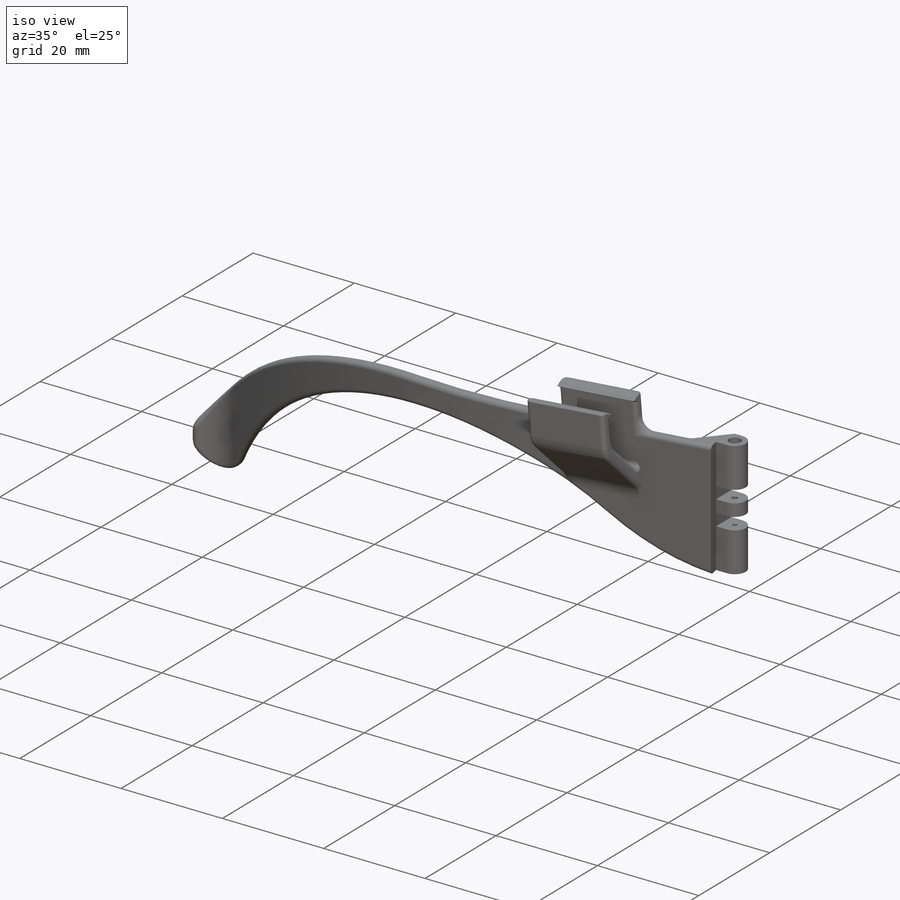
[diagram: iso view]
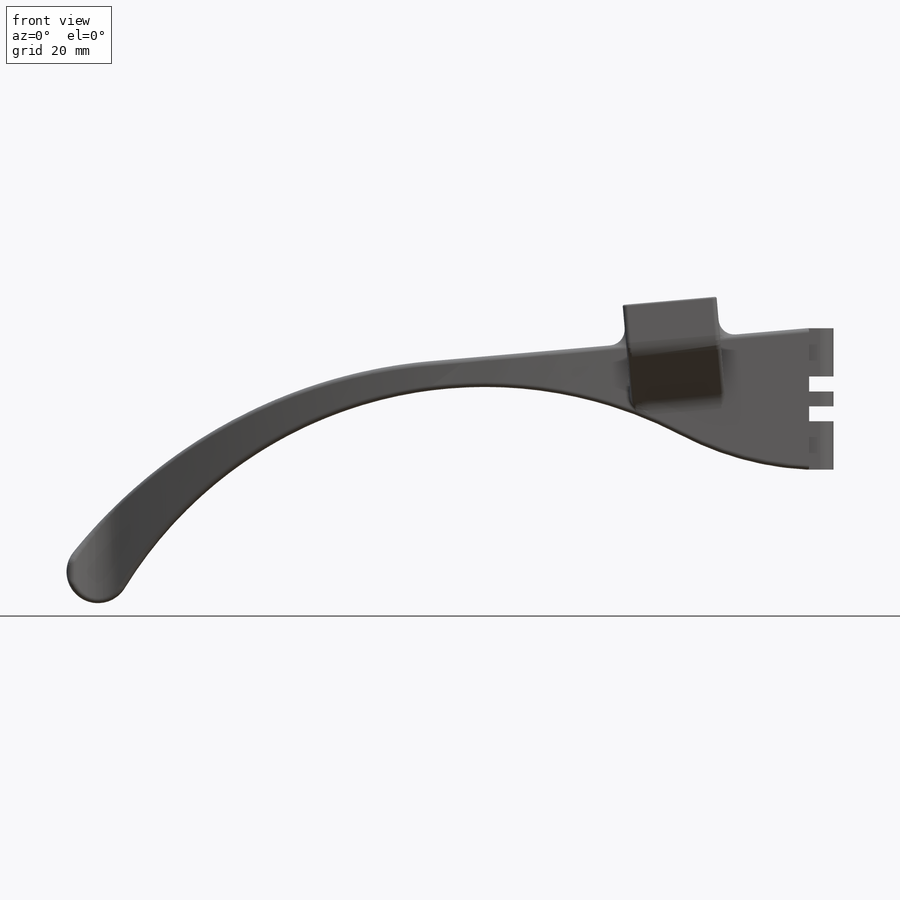
[diagram: front view]
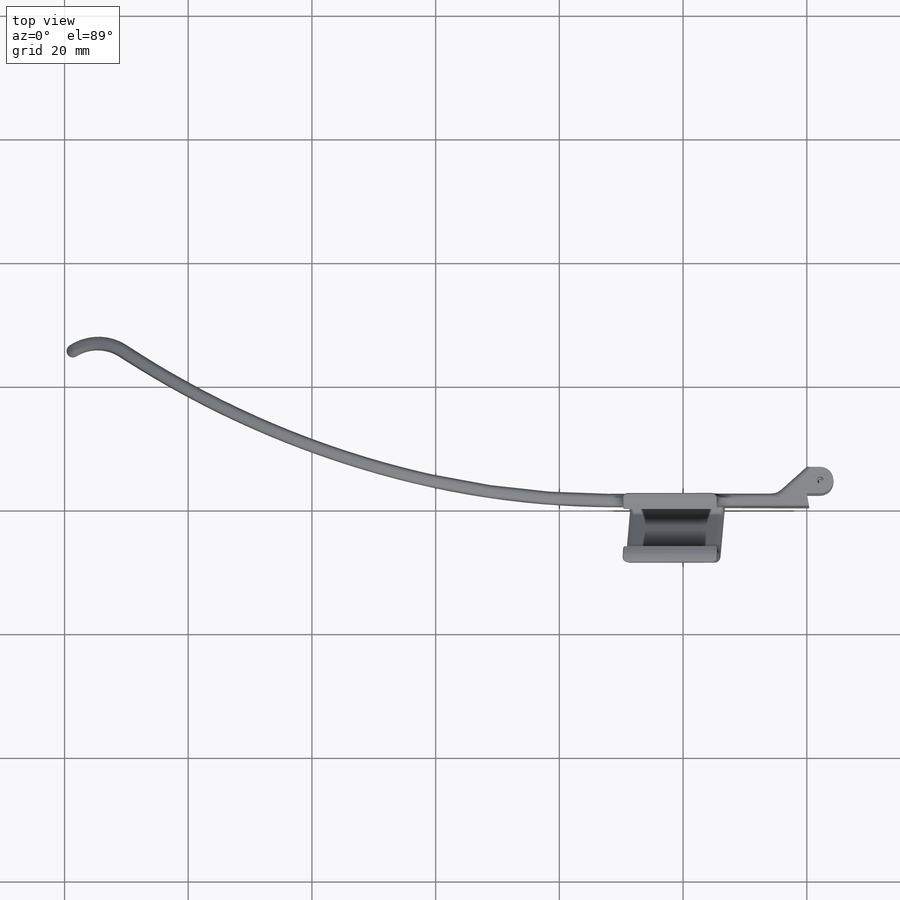
[diagram: top view]
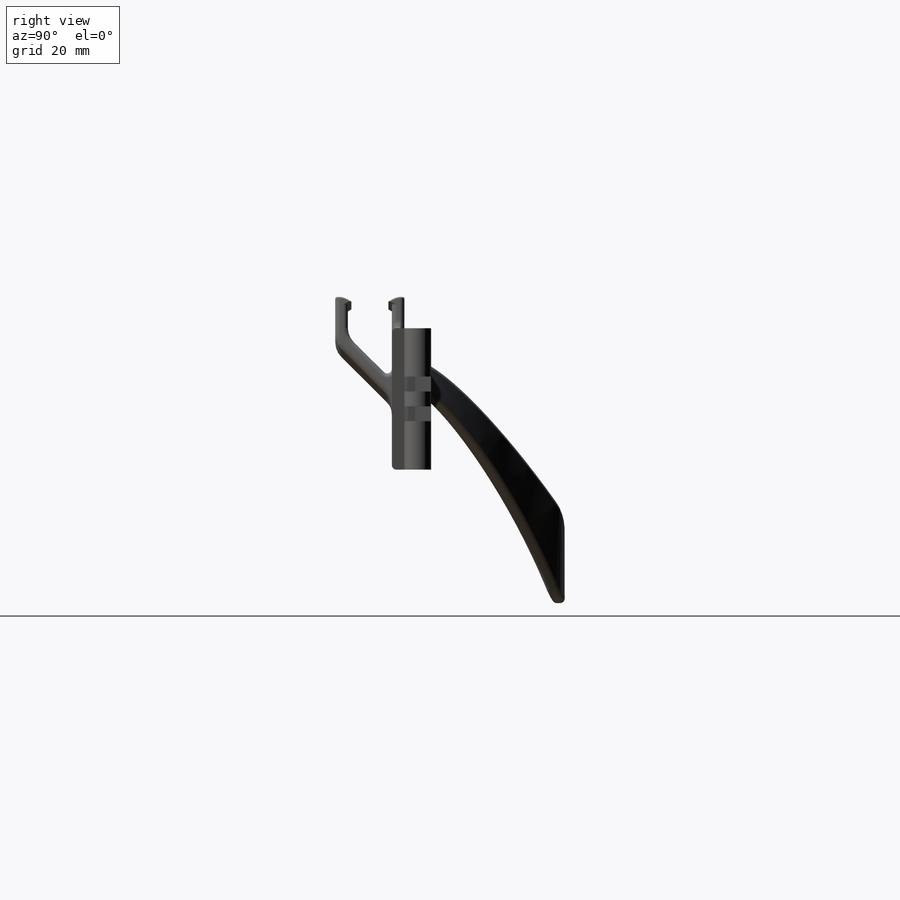
[diagram: right view]
SOLIDWORKS PART (.sldprt)
format: sldprt  version: not decoded by parser v0  size: 844,800 bytes
history: native  units: mm
features: sketch x13, fillet x13, cut_extrude x7, extrude x6, material x1, plane x1 (+12 scaffold rows collapsed)
feature tree (53):
  scaffold x12  (default folders/planes/origin — collapsed)
  material  "Material <not specified>"
  sketch  "Sketch1"  dims[c1.D4=6.35mm c1.D5=12.7mm c1.D6=~112.543066mm c1.D1=118.11mm c1.D2=25.908mm c1.D3=31.75mm c2.D5=1.016mm c2.D6=31.75mm c2.D7=3.81mm c2.D8=2.032mm]
  extrude  "Boss-Extrude1"  Depth=44.45mm
  sketch  "Sketch2"  dims[c1.D4=5.08mm c1.D5=~52.173141mm c1.D1=22.86mm c1.D2=~5.662721mm c2.D2=85.0deg c2.D3=60.96mm c2.D5=4.318mm c2.D6=~30.474369mm c3.D6=87.0deg c3.D7=20.32mm c3.D5=4.699mm]
  cut_extrude  "Cut-Extrude1"  Depth=44.45mm
  plane  "Plane2"
  sketch  "Sketch5"  dims[D1=4.826mm D2=4.318mm D3=4.318mm]
  extrude  "Boss-Extrude3"  [1 undecoded]
  sketch  "Sketch6"
  cut_extrude  "Cut-Extrude2"  Depth=44.45mm
  sketch  "Sketch7"  dims[c1.D1=7.874mm c1.D2=2.413mm c1.D3=2.413mm c1.D4=7.874mm c2.D1=2.413mm]
  cut_extrude  "Cut-Extrude3"  Depth=44.45mm
  sketch  "Sketch14"  dims[D1=0.381mm]
  extrude  "Boss-Extrude6"  [1 undecoded]
  sketch  "Sketch16"  dims[D1=15.24mm D2=2.54mm]
  extrude  "Boss-Extrude7"  Depth=6.35mm
  fillet  "Fillet8"  Radius=0.762mm
  fillet  "Fillet11"  Radius=0.762mm
  sketch  "Sketch17"  dims[c1.D1=9.144mm c1.D2=~13.789588mm c2.D2=50.0deg c2.D1=9.144mm c2.D3=2.032mm c3.D2=2.032mm c4.D2=50.0deg c5.D2=2.032mm c5.D3=2.286mm c5.D4=7.112mm c6.D4=45.0deg]
  extrude  "Boss-Extrude8"  [1 undecoded]
  fillet  "Fillet10"  Radius=2.54mm
  fillet  "Fillet12"  Radius=2.54mm
  fillet  "Fillet13"  Radius=3.302mm
  fillet  "Fillet14"  Radius=0.762mm
  fillet  "Fillet15"  Radius=3.302mm
  fillet  "Fillet17"  Radius=0.762mm
  sketch  "Sketch8"  dims[D1=2.286mm]
  cut_extrude  "Cut-Extrude4"  Depth=1.524mm
  sketch  "Sketch9"  dims[D1=1.143mm]
  cut_extrude  "Cut-Extrude5"  [1 undecoded]
  sketch  "Sketch10"  dims[D1=0.889mm]
  cut_extrude  "Cut-Extrude6"  Depth=2.54mm
  fillet  "Fillet5"  Radius=0.762mm
  fillet  "Fillet6"  Radius=2.54mm
  sketch  "Sketch19"  dims[c1.D1=1.524mm c1.D2=~2.86413mm c2.D2=60.0deg]
  extrude  "Boss-Extrude9"  [1 undecoded]
  sketch  "Sketch20"
  cut_extrude  "Cut-Extrude7"  [1 undecoded]
  fillet  "Fillet18"  Radius=2.54mm
  fillet  "Fillet19"  Radius=0.254mm
  fillet  "Fillet20"  Radius=0.762mm
decode coverage: 31 of 39 modeling features carry decoded parameters
note: ~ marks probable driven/reference dimensions
note: 6 parameter values undecoded
summary: no parameter record found for 6 features
note: suppression state not decoded; provenance and decode notes live in map.json
